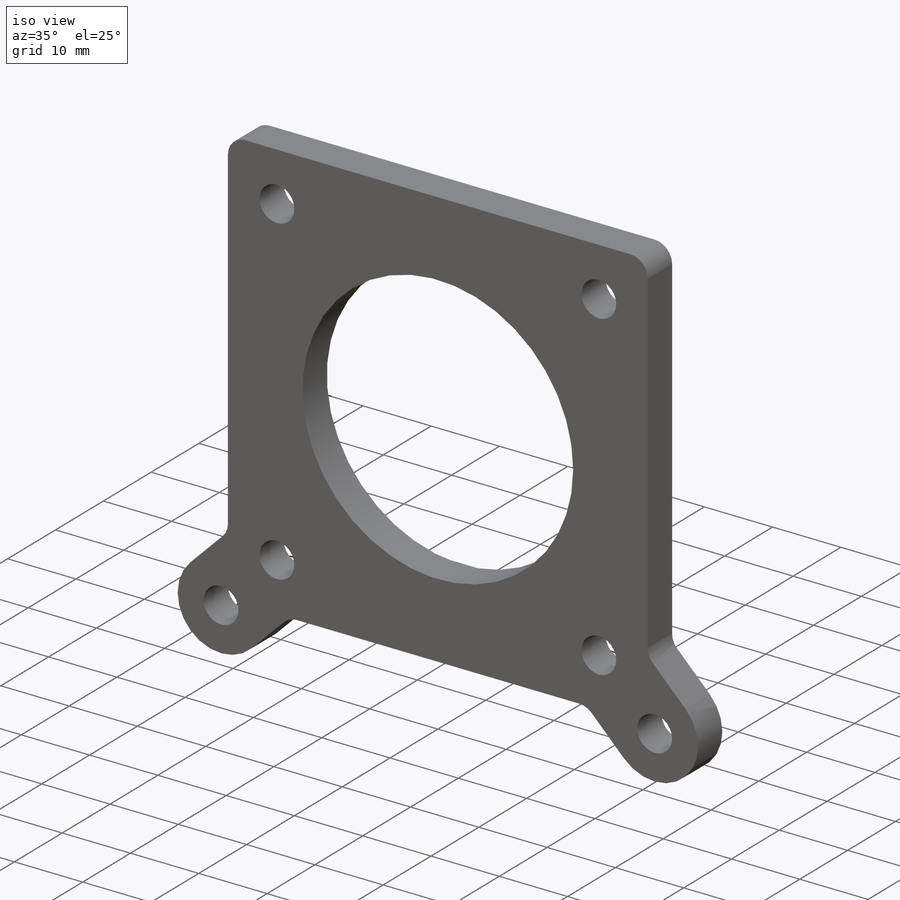
[diagram: iso view]
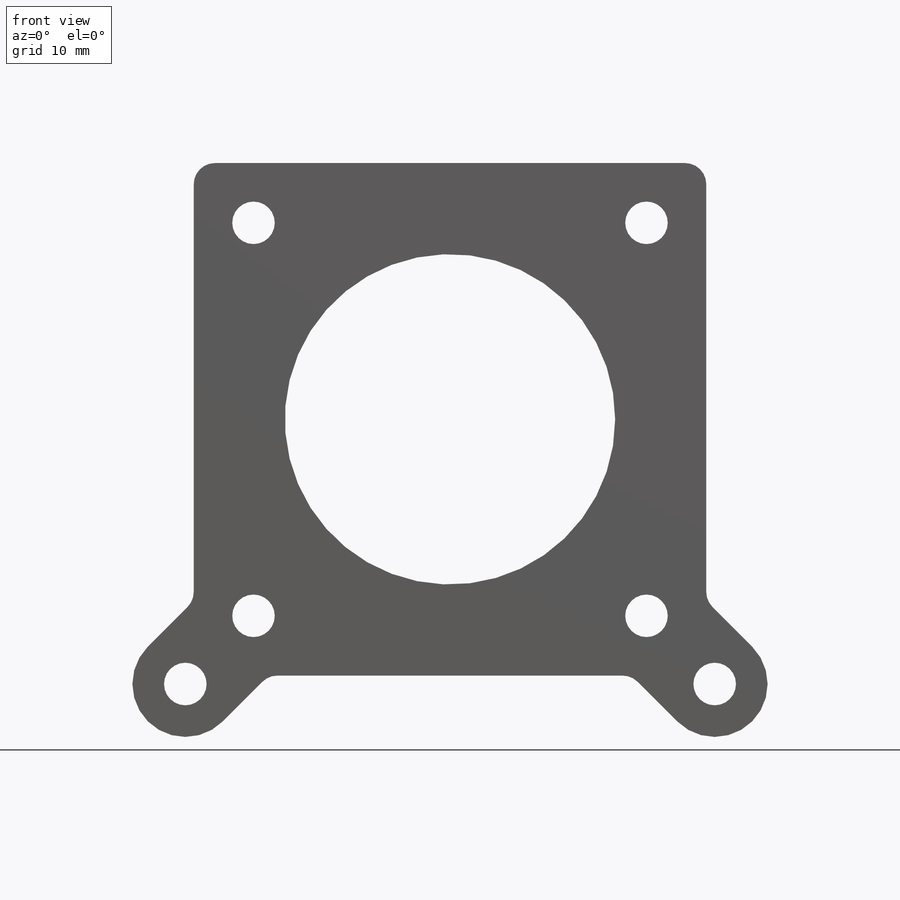
[diagram: front view]
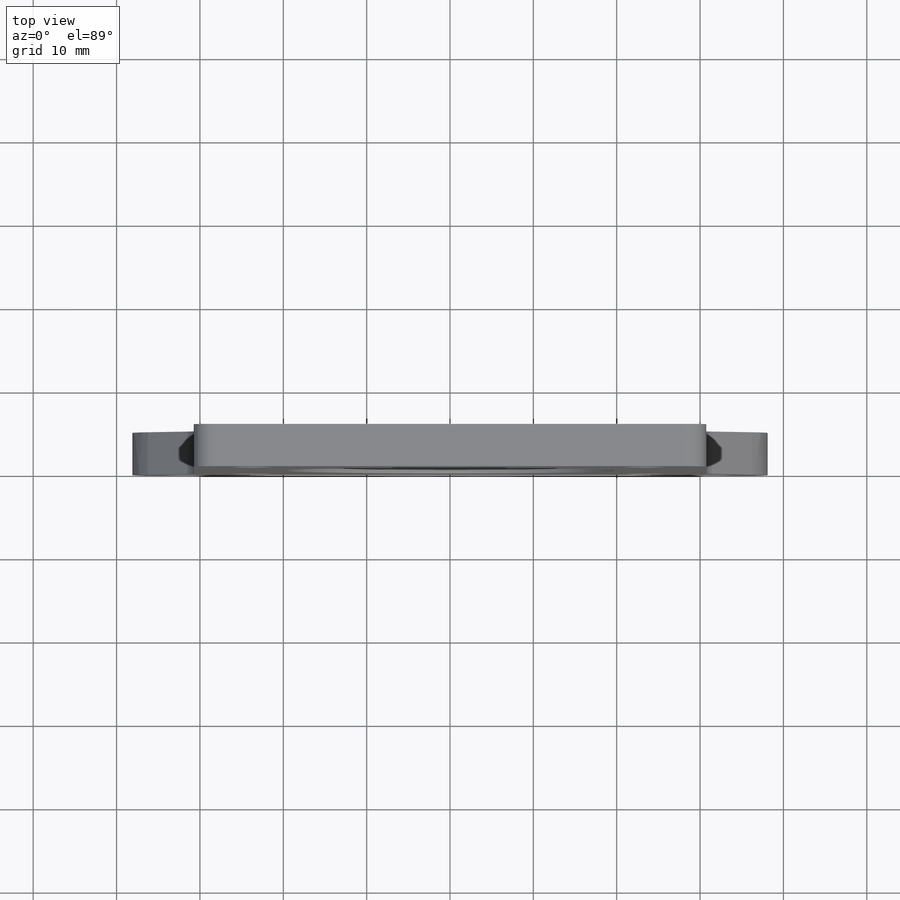
[diagram: top view]
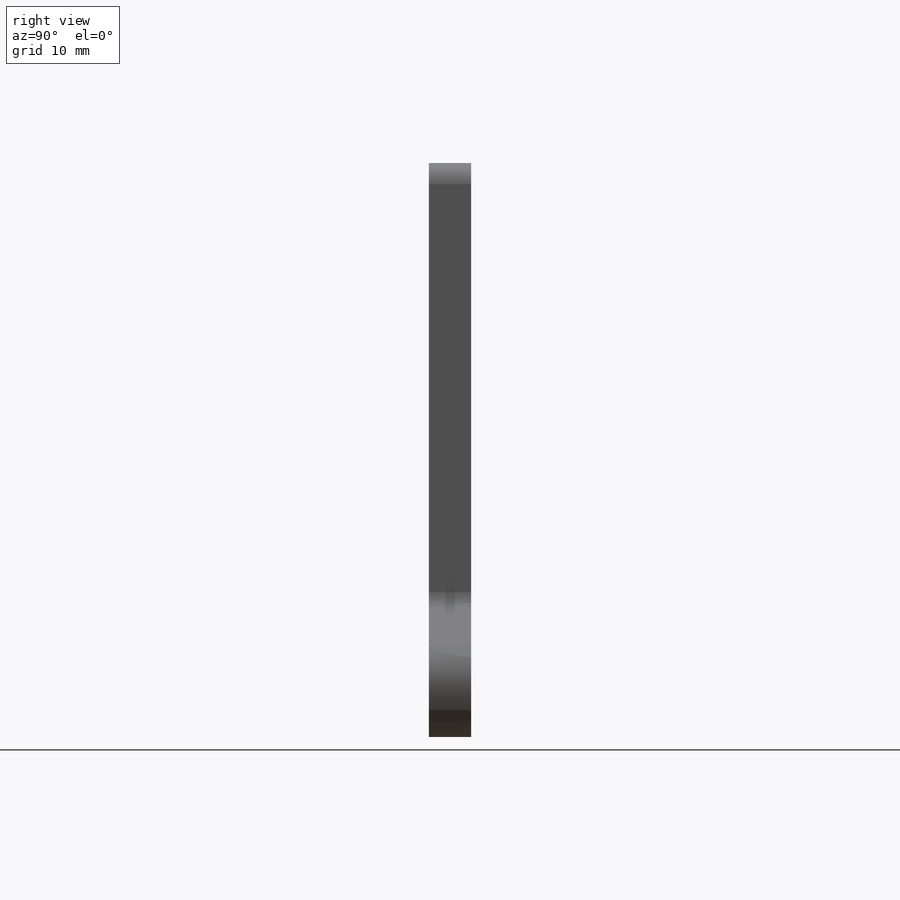
[diagram: right view]
SOLIDWORKS PART (.sldprt)
format: sldprt  version: not decoded by parser v0  size: 250,368 bytes
history: native  units: mm
features: sketch x4, extrude x2, fillet x2, material x1, hole x1 (+13 scaffold rows collapsed)
feature tree (23):
  scaffold x13  (default folders/planes/origin — collapsed)
  material  "Material <not specified>"
  sketch  "Sketch1"  dims[c1.D2=63.5mm c1.D3=88.9mm c1.D1=2.54mm c2.D2=2.54mm c2.D3=2.54mm c2.D4=2.54mm c2.D1=0.508mm c2.D5=0.762mm]
  extrude  "Boss-Extrude1"  Depth=5.08mm
  fillet  "Fillet1"  Radius=2.54mm
  sketch  "Sketch7"  dims[D1=12.7mm D3=6.35mm D2=31.75mm]
  extrude  "Boss-Extrude2"  [1 undecoded]
  fillet  "Fillet2"  Radius=2.54mm
  hole  "#10 Clearance Hole1"  Diameter=5.1054mm Depth=5.08mm
  sketch  "Sketch3"
  sketch  "Sketch2"  dims[hole-wizard template sketch: 60 standard entries collapsed; hole parameters kept: c18.Thru Hole Depth=5.08mm]
decode coverage: 7 of 9 modeling features carry decoded parameters
note: ~ marks probable driven/reference dimensions
note: 1 parameter value undecoded
note: suppression state not decoded; provenance and decode notes live in map.json
